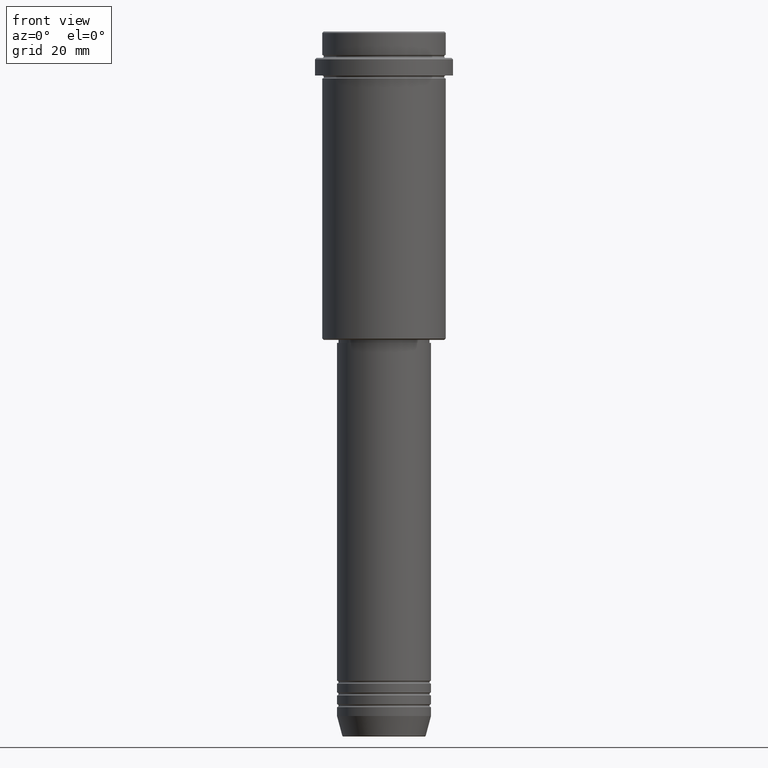
[diagram: clean part render]
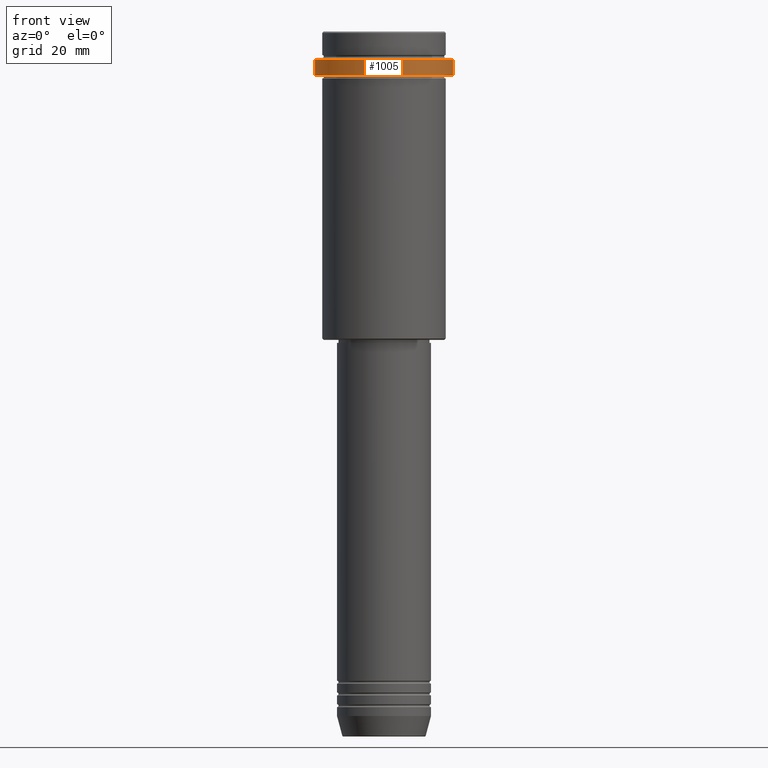
[diagram: same view with one face highlighted and labeled with its STEP entity id]
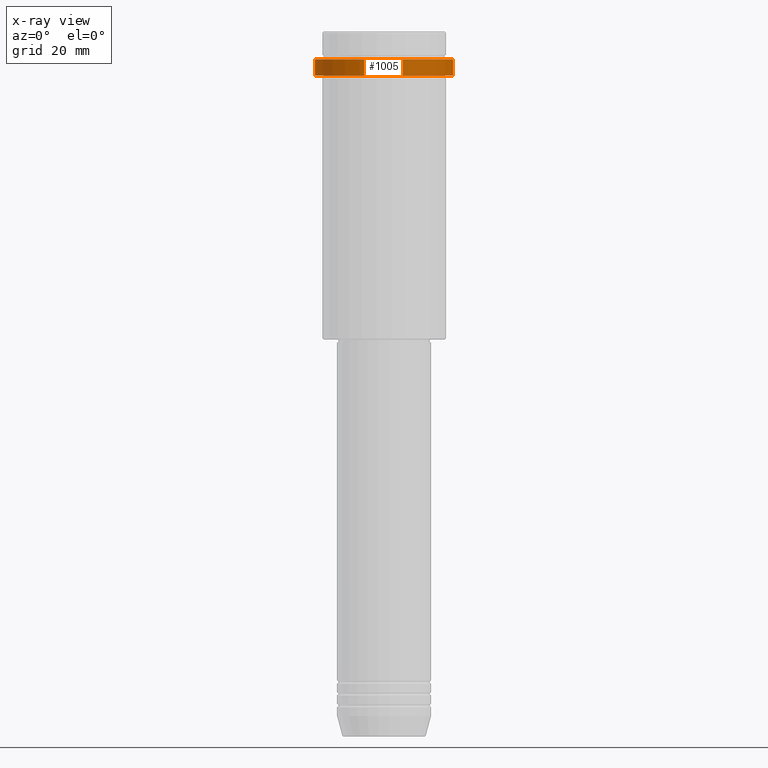
[diagram: x-ray of the same camera — body ghosted, the highlighted face saturated]
A machine part, front view. The second image highlights one B-rep face of the part: STEP entity #1005.
The next image is the same camera in x-ray: the body ghosted, the highlighted face saturated — about 0% of this face is hidden behind the body in this view.
In plain terms, the highlighted cylindrical surface (partial cylindrical patch) has radius 23.5 mm, axis along (-0, -0, 1).
Its self-contained STEP definition (entity closure, byte-faithful):
#47 = CIRCLE ( 'NONE', #850, 23.50000000000000355 ) ;
#66 = CARTESIAN_POINT ( 'NONE',  ( 0.000000000000000000, 0.000000000000000000, -15.00000000000000178 ) ) ;
#112 = DIRECTION ( 'NONE',  ( 1.000000000000000000, 0.000000000000000000, 0.000000000000000000 ) ) ;
#159 = CARTESIAN_POINT ( 'NONE',  ( -23.50000000000000000, 2.877919977996280320E-15, 0.000000000000000000 ) ) ;
#295 = DIRECTION ( 'NONE',  ( 1.000000000000000000, 0.000000000000000000, 0.000000000000000000 ) ) ;
#305 = VERTEX_POINT ( 'NONE', #1370 ) ;
#307 = DIRECTION ( 'NONE',  ( 0.000000000000000000, 0.000000000000000000, -1.000000000000000000 ) ) ;
#317 = VERTEX_POINT ( 'NONE', #494 ) ;
#346 = CIRCLE ( 'NONE', #469, 23.50000000000000000 ) ;
#349 = CARTESIAN_POINT ( 'NONE',  ( 0.000000000000000000, 0.000000000000000000, 0.000000000000000000 ) ) ;
#378 = DIRECTION ( 'NONE',  ( -0.000000000000000000, -0.000000000000000000, 1.000000000000000000 ) ) ;
#469 = AXIS2_PLACEMENT_3D ( 'NONE', #1184, #307, #649 ) ;
#471 = AXIS2_PLACEMENT_3D ( 'NONE', #349, #1229, #112 ) ;
#493 = EDGE_CURVE ( 'NONE', #1127, #317, #47, .T. ) ;
#494 = CARTESIAN_POINT ( 'NONE',  ( 23.50000000000000355, 0.000000000000000000, -15.00000000000000178 ) ) ;
#517 = ORIENTED_EDGE ( 'NONE', *, *, #614, .T. ) ;
#522 = DIRECTION ( 'NONE',  ( -0.000000000000000000, -0.000000000000000000, 1.000000000000000000 ) ) ;
#554 = CYLINDRICAL_SURFACE ( 'NONE', #471, 23.50000000000000000 ) ;
#570 = LINE ( 'NONE', #1342, #827 ) ;
#614 = EDGE_CURVE ( 'NONE', #317, #305, #570, .T. ) ;
#631 = EDGE_CURVE ( 'NONE', #1127, #816, #943, .T. ) ;
#649 = DIRECTION ( 'NONE',  ( 1.000000000000000000, 0.000000000000000000, 0.000000000000000000 ) ) ;
#662 = DIRECTION ( 'NONE',  ( -0.000000000000000000, -0.000000000000000000, 1.000000000000000000 ) ) ;
#687 = ORIENTED_EDGE ( 'NONE', *, *, #888, .T. ) ;
#732 = CARTESIAN_POINT ( 'NONE',  ( -23.50000000000000000, 2.877919977996280320E-15, -9.500000000000001776 ) ) ;
#816 = VERTEX_POINT ( 'NONE', #732 ) ;
#827 = VECTOR ( 'NONE', #662, 1000.000000000000000 ) ;
#850 = AXIS2_PLACEMENT_3D ( 'NONE', #66, #522, #295 ) ;
#868 = ORIENTED_EDGE ( 'NONE', *, *, #493, .T. ) ;
#888 = EDGE_CURVE ( 'NONE', #305, #816, #346, .T. ) ;
#943 = LINE ( 'NONE', #159, #1357 ) ;
#1005 = ADVANCED_FACE ( 'NONE', ( #1417 ), #554, .T. ) ;
#1046 = CARTESIAN_POINT ( 'NONE',  ( -23.50000000000000711, 2.877919977996281109E-15, -15.00000000000000178 ) ) ;
#1127 = VERTEX_POINT ( 'NONE', #1046 ) ;
#1184 = CARTESIAN_POINT ( 'NONE',  ( 0.000000000000000000, 0.000000000000000000, -9.500000000000001776 ) ) ;
#1229 = DIRECTION ( 'NONE',  ( -0.000000000000000000, -0.000000000000000000, 1.000000000000000000 ) ) ;
#1264 = ORIENTED_EDGE ( 'NONE', *, *, #631, .F. ) ;
#1342 = CARTESIAN_POINT ( 'NONE',  ( 23.50000000000000000, 0.000000000000000000, 0.000000000000000000 ) ) ;
#1357 = VECTOR ( 'NONE', #378, 1000.000000000000000 ) ;
#1370 = CARTESIAN_POINT ( 'NONE',  ( 23.50000000000000000, 0.000000000000000000, -9.500000000000001776 ) ) ;
#1376 = EDGE_LOOP ( 'NONE', ( #1264, #868, #517, #687 ) ) ;
#1417 = FACE_OUTER_BOUND ( 'NONE', #1376, .T. ) ;